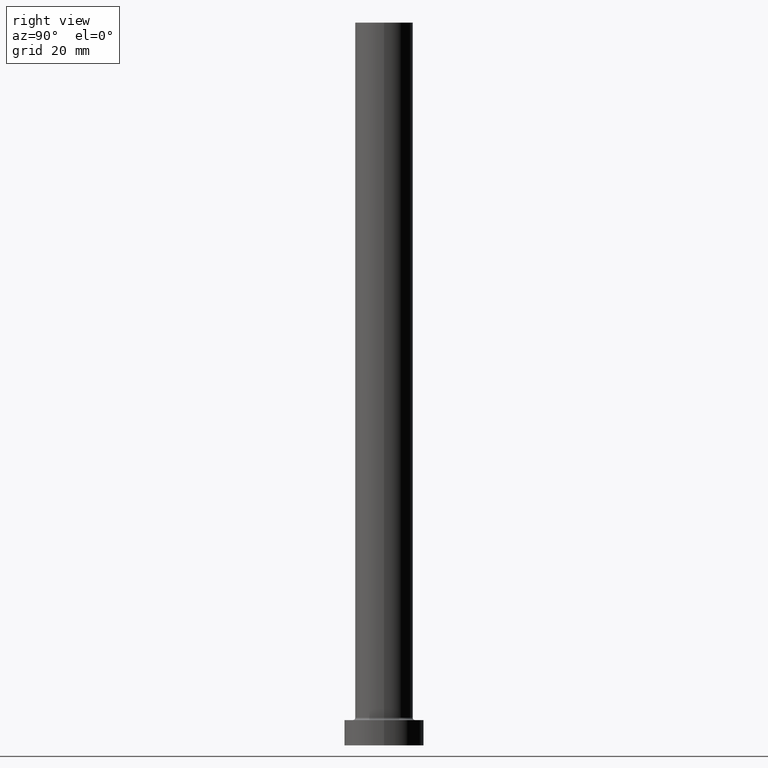
[diagram: clean part render]
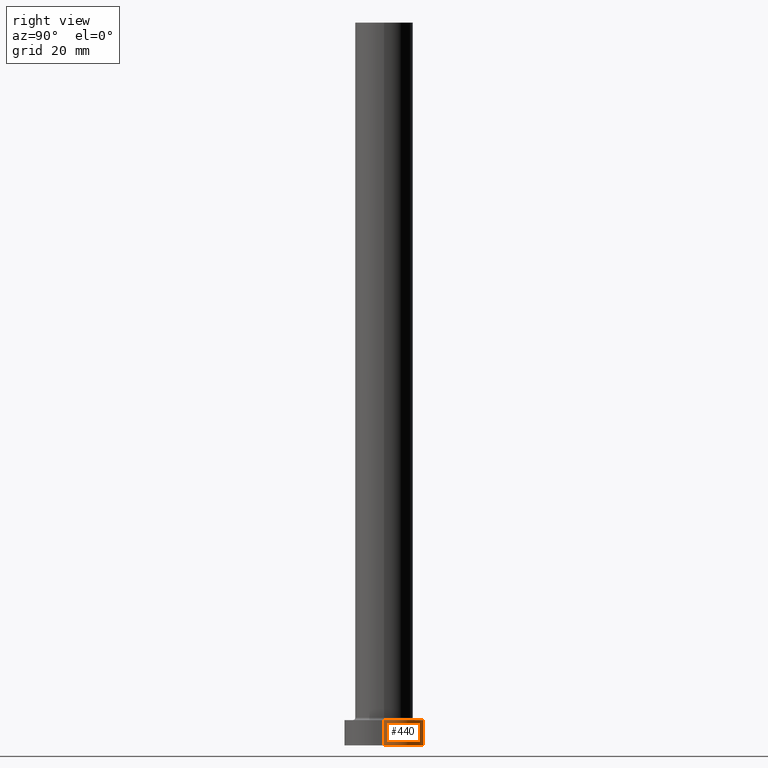
[diagram: same view with one face highlighted and labeled with its STEP entity id]
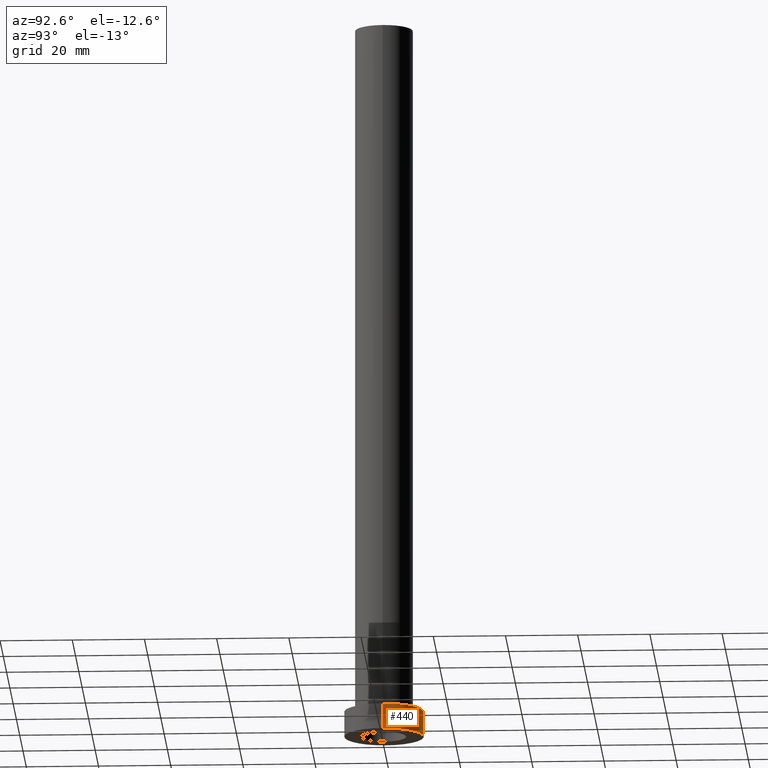
[diagram: same view with one face highlighted and labeled with its STEP entity id]
A machine part, right view. The second image highlights one B-rep face of the part: STEP entity #440.
A second angle (auxiliary view) of the same face is appended — the face is thin or edge-on in the first view.
In plain terms, the highlighted cylindrical surface (partial cylindrical patch) has radius 11 mm, axis along (-0, -0, -1).
Its self-contained STEP definition (entity closure, byte-faithful):
#1 = CARTESIAN_POINT ( 'NONE',  ( -11.00000000000000000, 0.000000000000000000, 7.000000000000000000 ) ) ;
#10 = AXIS2_PLACEMENT_3D ( 'NONE', #72, #361, #292 ) ;
#11 = AXIS2_PLACEMENT_3D ( 'NONE', #347, #179, #94 ) ;
#36 = EDGE_CURVE ( 'NONE', #352, #305, #287, .T. ) ;
#39 = CARTESIAN_POINT ( 'NONE',  ( 0.000000000000000000, 0.000000000000000000, 7.000000000000000000 ) ) ;
#54 = CARTESIAN_POINT ( 'NONE',  ( -11.00000000000000000, 0.000000000000000000, 7.000000000000000000 ) ) ;
#72 = CARTESIAN_POINT ( 'NONE',  ( 0.000000000000000000, 0.000000000000000000, 0.000000000000000000 ) ) ;
#94 = DIRECTION ( 'NONE',  ( -1.000000000000000000, 0.000000000000000000, 0.000000000000000000 ) ) ;
#98 = CARTESIAN_POINT ( 'NONE',  ( 11.00000000000000000, 1.347111479062088405E-15, 7.000000000000000000 ) ) ;
#99 = EDGE_CURVE ( 'NONE', #345, #155, #242, .T. ) ;
#121 = ORIENTED_EDGE ( 'NONE', *, *, #146, .T. ) ;
#122 = CARTESIAN_POINT ( 'NONE',  ( 11.00000000000000000, 1.347111479062088405E-15, 7.000000000000000000 ) ) ;
#146 = EDGE_CURVE ( 'NONE', #305, #155, #363, .T. ) ;
#155 = VERTEX_POINT ( 'NONE', #430 ) ;
#164 = ORIENTED_EDGE ( 'NONE', *, *, #266, .F. ) ;
#176 = EDGE_LOOP ( 'NONE', ( #164, #209, #121, #300 ) ) ;
#177 = CIRCLE ( 'NONE', #234, 11.00000000000000000 ) ;
#179 = DIRECTION ( 'NONE',  ( -0.000000000000000000, -0.000000000000000000, -1.000000000000000000 ) ) ;
#184 = DIRECTION ( 'NONE',  ( 0.000000000000000000, 0.000000000000000000, 1.000000000000000000 ) ) ;
#209 = ORIENTED_EDGE ( 'NONE', *, *, #36, .T. ) ;
#234 = AXIS2_PLACEMENT_3D ( 'NONE', #39, #184, #326 ) ;
#242 = LINE ( 'NONE', #1, #362 ) ;
#266 = EDGE_CURVE ( 'NONE', #352, #345, #177, .T. ) ;
#287 = LINE ( 'NONE', #98, #293 ) ;
#292 = DIRECTION ( 'NONE',  ( 1.000000000000000000, 0.000000000000000000, 0.000000000000000000 ) ) ;
#293 = VECTOR ( 'NONE', #425, 1000.000000000000000 ) ;
#300 = ORIENTED_EDGE ( 'NONE', *, *, #99, .F. ) ;
#305 = VERTEX_POINT ( 'NONE', #409 ) ;
#326 = DIRECTION ( 'NONE',  ( 1.000000000000000000, 0.000000000000000000, 0.000000000000000000 ) ) ;
#345 = VERTEX_POINT ( 'NONE', #54 ) ;
#347 = CARTESIAN_POINT ( 'NONE',  ( 0.000000000000000000, 0.000000000000000000, 7.000000000000000000 ) ) ;
#352 = VERTEX_POINT ( 'NONE', #122 ) ;
#355 = CYLINDRICAL_SURFACE ( 'NONE', #11, 11.00000000000000000 ) ;
#361 = DIRECTION ( 'NONE',  ( 0.000000000000000000, 0.000000000000000000, 1.000000000000000000 ) ) ;
#362 = VECTOR ( 'NONE', #434, 1000.000000000000000 ) ;
#363 = CIRCLE ( 'NONE', #10, 11.00000000000000000 ) ;
#387 = FACE_OUTER_BOUND ( 'NONE', #176, .T. ) ;
#409 = CARTESIAN_POINT ( 'NONE',  ( 11.00000000000000000, 1.347111479062088405E-15, 0.000000000000000000 ) ) ;
#425 = DIRECTION ( 'NONE',  ( -0.000000000000000000, -0.000000000000000000, -1.000000000000000000 ) ) ;
#430 = CARTESIAN_POINT ( 'NONE',  ( -11.00000000000000000, 0.000000000000000000, 0.000000000000000000 ) ) ;
#434 = DIRECTION ( 'NONE',  ( -0.000000000000000000, -0.000000000000000000, -1.000000000000000000 ) ) ;
#440 = ADVANCED_FACE ( 'NONE', ( #387 ), #355, .T. ) ;